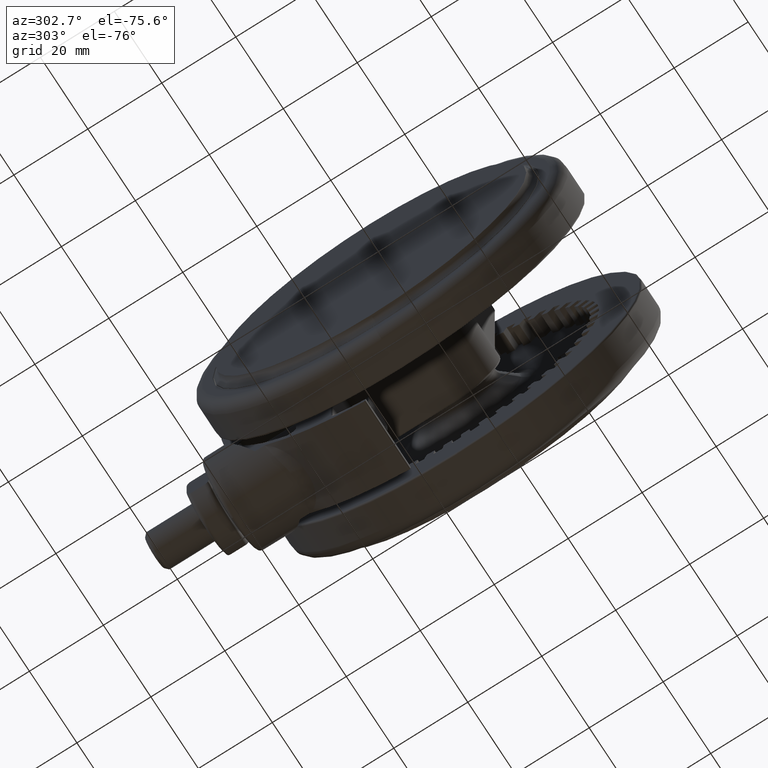
[diagram: clean part render]
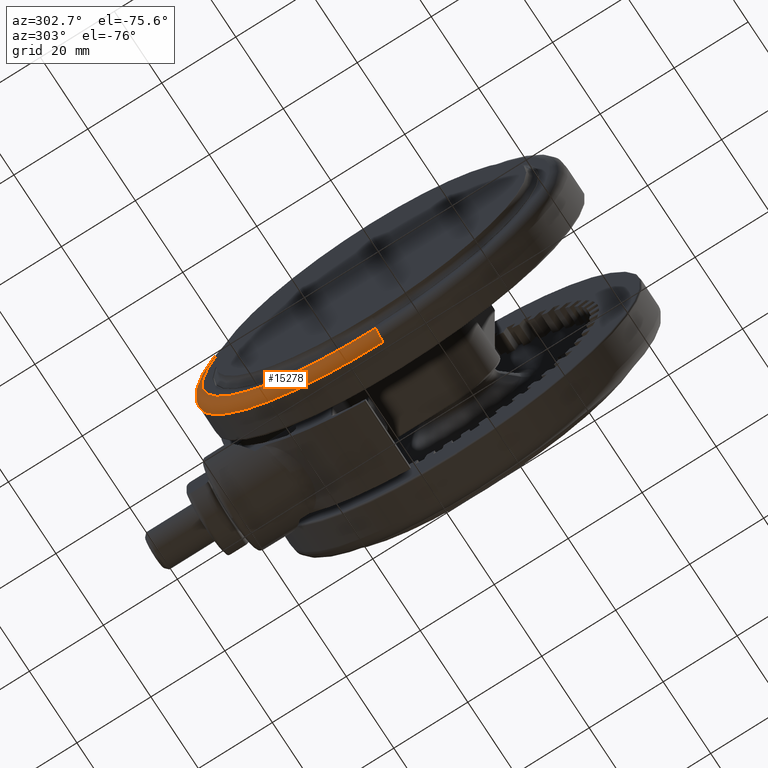
[diagram: same view with one face highlighted and labeled with its STEP entity id]
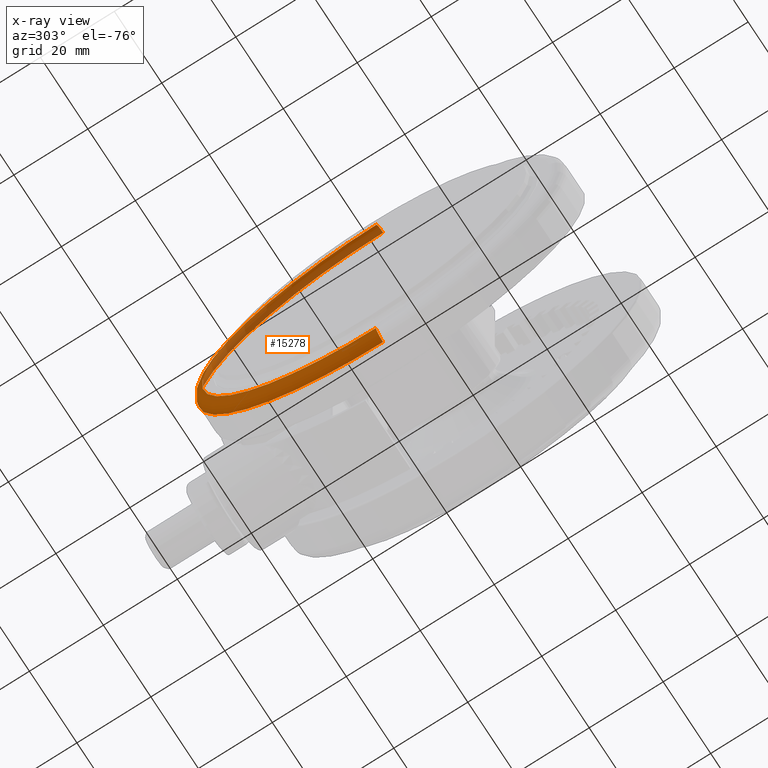
[diagram: x-ray of the same camera — body ghosted, the highlighted face saturated]
A machine part, auxiliary view. The second image highlights one B-rep face of the part: STEP entity #15278.
The next image is the same camera in x-ray: the body ghosted, the highlighted face saturated — about 25% of this face is hidden behind the body in this view.
In plain terms, the highlighted toroidal blend (fillet) surface has major radius 47 mm and minor (blend) radius 3 mm.
Its self-contained STEP definition (entity closure, byte-faithful):
#29 = EDGE_CURVE ( 'NONE', #16267, #31523, #6079, .T. ) ;
#214 = ORIENTED_EDGE ( 'NONE', *, *, #13673, .F. ) ;
#1244 = CARTESIAN_POINT ( 'NONE',  ( 46.99999999999997200, 2.074324750207571900E-015, -46.50000000000008500 ) ) ;
#1708 = CIRCLE ( 'NONE', #32010, 3.000000000000002700 ) ;
#2439 = ORIENTED_EDGE ( 'NONE', *, *, #2652, .F. ) ;
#2652 = EDGE_CURVE ( 'NONE', #17341, #16267, #29269, .T. ) ;
#3812 = DIRECTION ( 'NONE',  ( 4.413456915335259200E-017, -1.000000000000000000, -8.826913830670518300E-017 ) ) ;
#4774 = CIRCLE ( 'NONE', #23191, 50.00000000000000000 ) ;
#5903 = CARTESIAN_POINT ( 'NONE',  ( -2.775557561562891400E-014, -2.648074149201058700E-016, -43.50000000000019200 ) ) ;
#5984 = CARTESIAN_POINT ( 'NONE',  ( -2.775557561562891400E-014, 0.0000000000000000000, -46.50000000000008500 ) ) ;
#6039 = EDGE_CURVE ( 'NONE', #17341, #22595, #1708, .T. ) ;
#6079 = CIRCLE ( 'NONE', #30630, 3.000000000000002700 ) ;
#8423 = DIRECTION ( 'NONE',  ( 1.000000000000000000, 4.413456915335259800E-017, 0.0000000000000000000 ) ) ;
#8507 = DIRECTION ( 'NONE',  ( 1.000000000000000000, 4.413456915335259200E-017, 0.0000000000000000000 ) ) ;
#8725 = DIRECTION ( 'NONE',  ( 8.142324776845440500E-034, -8.826913830670518300E-017, 1.000000000000000000 ) ) ;
#9138 = AXIS2_PLACEMENT_3D ( 'NONE', #28558, #8725, #11220 ) ;
#10824 = CARTESIAN_POINT ( 'NONE',  ( -47.00000000000002800, 3.416707790864882100E-015, -43.50000000000019200 ) ) ;
#11220 = DIRECTION ( 'NONE',  ( 1.000000000000000000, 4.413456915335259800E-017, 3.081487911019580800E-033 ) ) ;
#13310 = DIRECTION ( 'NONE',  ( 0.0000000000000000000, -8.826913830670507200E-017, 1.000000000000000000 ) ) ;
#13673 = EDGE_CURVE ( 'NONE', #31523, #22595, #4774, .T. ) ;
#15278 = ADVANCED_FACE ( 'NONE', ( #30500 ), #32092, .T. ) ;
#15306 = CARTESIAN_POINT ( 'NONE',  ( -50.00000000000002800, 3.651698123149029500E-015, -43.50000000000019200 ) ) ;
#16267 = VERTEX_POINT ( 'NONE', #1244 ) ;
#17341 = VERTEX_POINT ( 'NONE', #21985 ) ;
#18752 = CARTESIAN_POINT ( 'NONE',  ( 46.99999999999997200, 1.809517335287466000E-015, -43.50000000000019200 ) ) ;
#21236 = DIRECTION ( 'NONE',  ( 0.0000000000000000000, 8.826913830670507200E-017, -1.000000000000000000 ) ) ;
#21985 = CARTESIAN_POINT ( 'NONE',  ( -47.00000000000002800, 3.666606664467014500E-015, -46.50000000000008500 ) ) ;
#22595 = VERTEX_POINT ( 'NONE', #15306 ) ;
#22915 = ORIENTED_EDGE ( 'NONE', *, *, #6039, .T. ) ;
#23191 = AXIS2_PLACEMENT_3D ( 'NONE', #5903, #23356, #8423 ) ;
#23356 = DIRECTION ( 'NONE',  ( 8.142324776845440500E-034, -8.826913830670518300E-017, 1.000000000000000000 ) ) ;
#23441 = DIRECTION ( 'NONE',  ( -8.142324776845440500E-034, 8.826913830670518300E-017, -1.000000000000000000 ) ) ;
#25765 = CARTESIAN_POINT ( 'NONE',  ( 49.99999999999997200, 1.941921042747523700E-015, -43.50000000000019200 ) ) ;
#26167 = EDGE_LOOP ( 'NONE', ( #2439, #22915, #214, #29246 ) ) ;
#26636 = AXIS2_PLACEMENT_3D ( 'NONE', #5984, #23441, #8507 ) ;
#28269 = DIRECTION ( 'NONE',  ( 7.833011076138272300E-017, 1.000000000000000000, 8.826913830670518300E-017 ) ) ;
#28558 = CARTESIAN_POINT ( 'NONE',  ( -2.775557561562891400E-014, -2.648074149201058700E-016, -43.50000000000019200 ) ) ;
#29246 = ORIENTED_EDGE ( 'NONE', *, *, #29, .F. ) ;
#29269 = CIRCLE ( 'NONE', #26636, 47.00000000000000000 ) ;
#30500 = FACE_OUTER_BOUND ( 'NONE', #26167, .T. ) ;
#30630 = AXIS2_PLACEMENT_3D ( 'NONE', #18752, #3812, #21236 ) ;
#31523 = VERTEX_POINT ( 'NONE', #25765 ) ;
#32010 = AXIS2_PLACEMENT_3D ( 'NONE', #10824, #28269, #13310 ) ;
#32092 = TOROIDAL_SURFACE ( 'NONE', #9138, 47.00000000000000000, 3.000000000000000000 ) ;